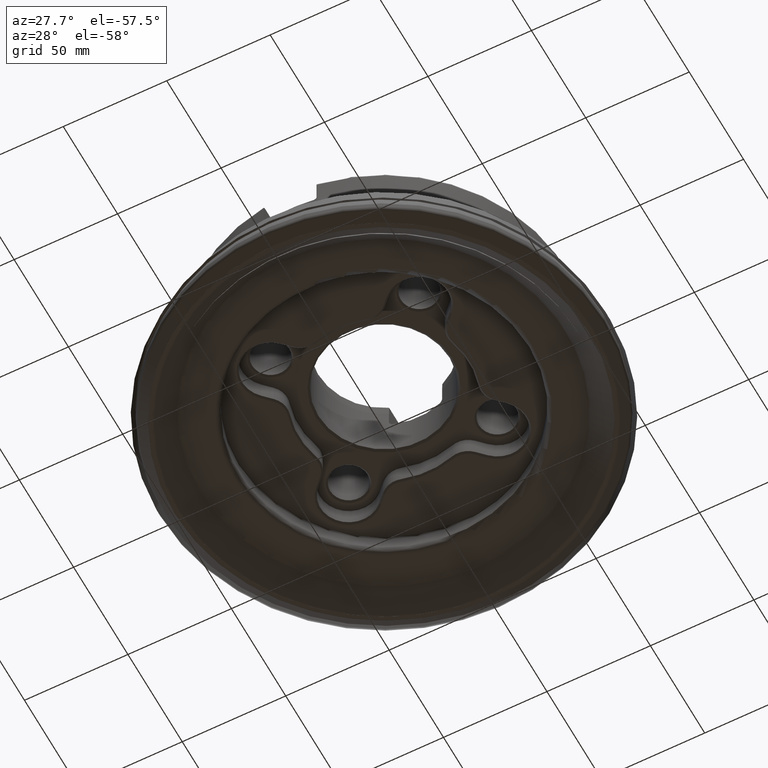
[diagram: clean part render]
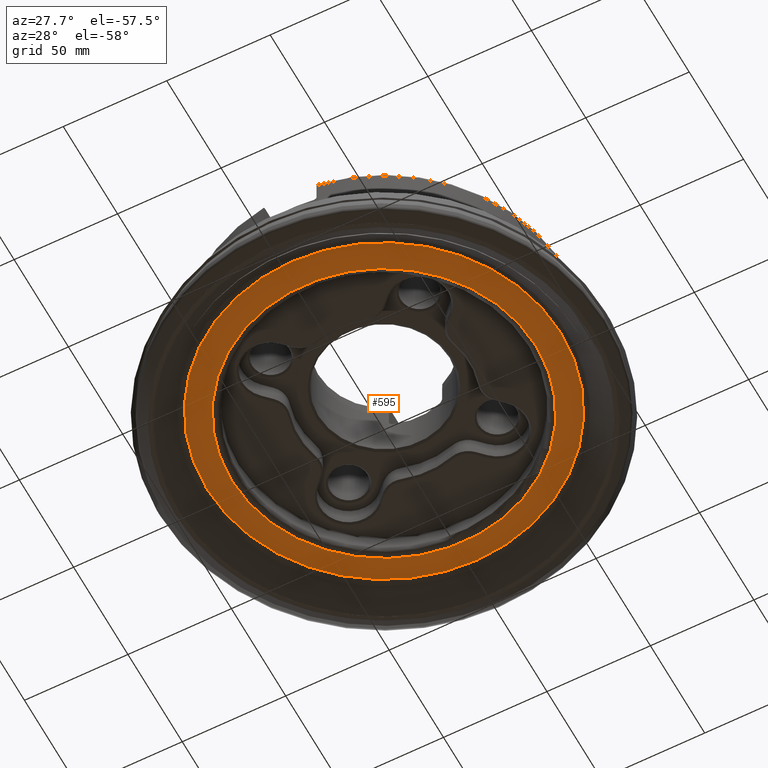
[diagram: same view with one face highlighted and labeled with its STEP entity id]
A machine part, auxiliary view. The second image highlights one B-rep face of the part: STEP entity #595.
In plain terms, the highlighted conical surface has half-angle 81 deg.
Its self-contained STEP definition (entity closure, byte-faithful):
#204=CONICAL_SURFACE('',#2649,87.1436646723931,81.);
#595=ADVANCED_FACE('',(#794,#795),#204,.T.);
#794=FACE_BOUND('',#951,.T.);
#795=FACE_BOUND('',#952,.T.);
#951=EDGE_LOOP('',(#1244));
#952=EDGE_LOOP('',(#1245));
#1244=ORIENTED_EDGE('',*,*,#2085,.T.);
#1245=ORIENTED_EDGE('',*,*,#2086,.T.);
#1858=VERTEX_POINT('',#4151);
#1859=VERTEX_POINT('',#4153);
#2085=EDGE_CURVE('',#1858,#1858,#2364,.T.);
#2086=EDGE_CURVE('',#1859,#1859,#2365,.T.);
#2364=CIRCLE('',#2647,85.4659350096707);
#2365=CIRCLE('',#2648,73.5546551643123);
#2647=AXIS2_PLACEMENT_3D('',#4150,#3012,#3013);
#2648=AXIS2_PLACEMENT_3D('',#4152,#3014,#3015);
#2649=AXIS2_PLACEMENT_3D('',#4154,#3016,#3017);
#3012=DIRECTION('',(-1.17145536458252E-15,0.,-1.));
#3013=DIRECTION('',(1.,0.,-1.17724051805284E-15));
#3014=DIRECTION('',(1.17145536458252E-15,0.,1.));
#3015=DIRECTION('',(-1.,0.,1.1792071297878E-15));
#3016=DIRECTION('',(1.17145536458252E-15,0.,1.));
#3017=DIRECTION('',(1.,0.,-1.1705035753308E-15));
#4150=CARTESIAN_POINT('',(1.18701165688989E-14,0.,10.1327945799532));
#4151=CARTESIAN_POINT('',(85.4659350096707,0.,10.1327945799531));
#4152=CARTESIAN_POINT('',(9.66009410579497E-15,0.,8.24623318809725));
#4153=CARTESIAN_POINT('',(-73.5546551643123,0.,8.24623318809733));
#4154=CARTESIAN_POINT('',(1.21814030376723E-14,0.,10.3985208535994));